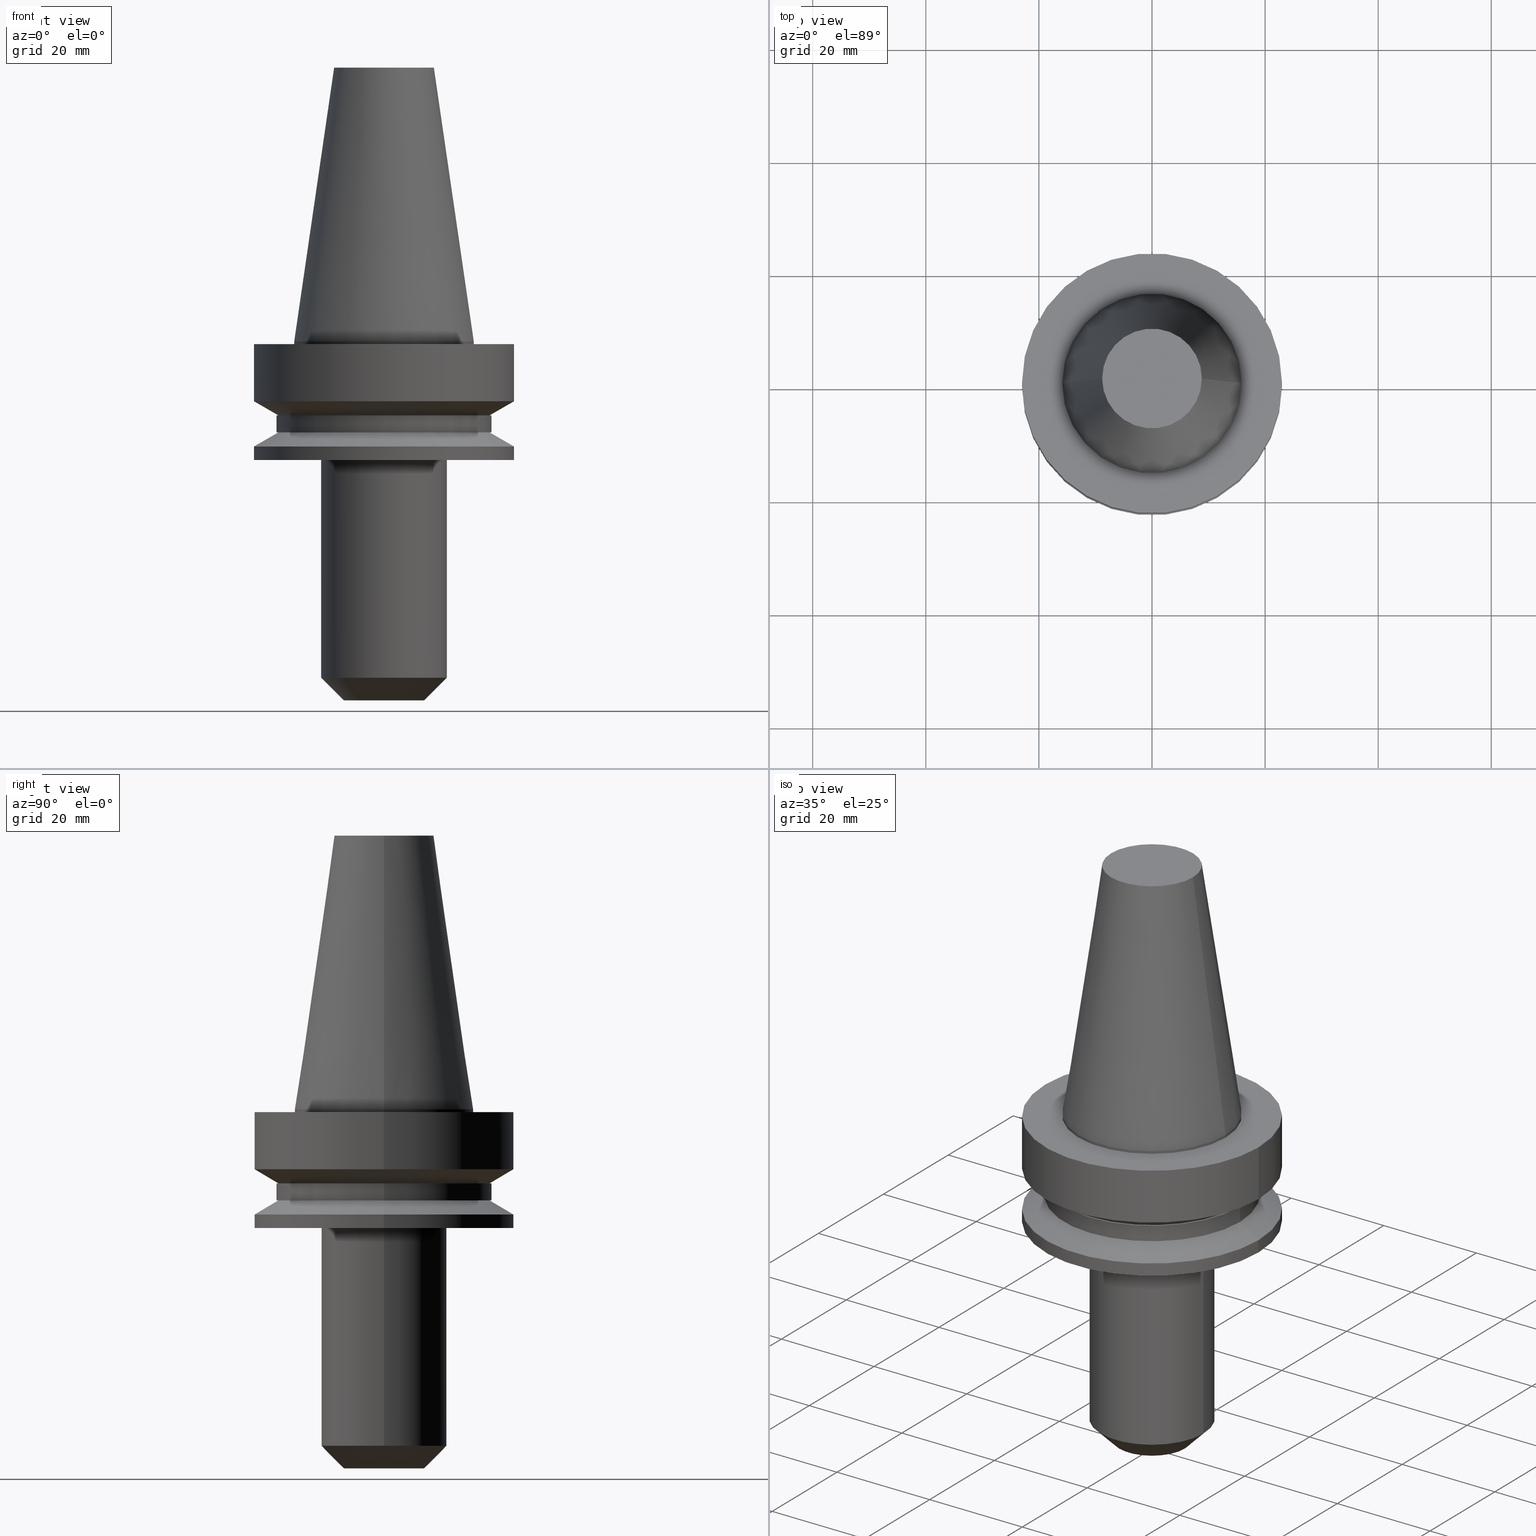
[diagram: canonical four-view strip — front | top / right | iso, engineering-drawing reading convention]
A machine part, canonical four-view strip (front | top / right | iso — engineering-drawing reading convention). The complete STEP part file that produces these views, byte-faithful:
ISO-10303-21;
HEADER;
FILE_DESCRIPTION (( 'STEP AP203' ),
    '1' );
FILE_NAME ('BBT30-EM_250-2_5.STEP',
    '2022-02-22T21:17:01',
    ( '' ),
    ( '' ),
    'SwSTEP 2.0',
    'SolidWorks 2021',
    '' );
FILE_SCHEMA (( 'CONFIG_CONTROL_DESIGN' ));
ENDSEC;

DATA;
#1 = ORIENTED_EDGE ( 'NONE', *, *, #625, .T. ) ;
#2 = EDGE_CURVE ( 'NONE', #422, #85, #767, .T. ) ;
#3 = DIRECTION ( 'NONE',  ( 1.000000000000000000, 0.000000000000000000, 0.000000000000000000 ) ) ;
#4 = APPLICATION_CONTEXT ( 'configuration controlled 3d designs of mechanical parts and assemblies' ) ;
#5 = CARTESIAN_POINT ( 'NONE',  ( 23.00000000000000711, 0.000000000000000000, -10.60014200631680126 ) ) ;
#6 = VECTOR ( 'NONE', #179, 1000.000000000000000 ) ;
#7 = EDGE_LOOP ( 'NONE', ( #473, #437, #230, #31 ) ) ;
#8 = ADVANCED_FACE ( 'NONE', ( #457 ), #591, .T. ) ;
#9 = FACE_OUTER_BOUND ( 'NONE', #148, .T. ) ;
#10 = CIRCLE ( 'NONE', #592, 3.174999999999999378 ) ;
#11 = CARTESIAN_POINT ( 'NONE',  ( -23.00000000000000000, 2.816687638038912746E-15, -18.60014200631680836 ) ) ;
#12 = EDGE_LOOP ( 'NONE', ( #123, #95, #207, #219 ) ) ;
#13 = CYLINDRICAL_SURFACE ( 'NONE', #240, 22.99999999999999645 ) ;
#14 = CARTESIAN_POINT ( 'NONE',  ( 19.00000000000000000, 0.000000000000000000, -13.10028401263362063 ) ) ;
#15 = ORIENTED_EDGE ( 'NONE', *, *, #190, .F. ) ;
#16 = DIRECTION ( 'NONE',  ( 1.000000000000000000, 0.000000000000000000, 0.000000000000000000 ) ) ;
#17 = FACE_OUTER_BOUND ( 'NONE', #593, .T. ) ;
#18 = ADVANCED_FACE ( 'NONE', ( #169, #405 ), #644, .F. ) ;
#19 = EDGE_LOOP ( 'NONE', ( #549, #726 ) ) ;
#20 = AXIS2_PLACEMENT_3D ( 'NONE', #312, #264, #614 ) ;
#21 = AXIS2_PLACEMENT_3D ( 'NONE', #82, #737, #685 ) ;
#22 = CARTESIAN_POINT ( 'NONE',  ( 0.000000000000000000, 18.66962701892216359, -13.10028401263362063 ) ) ;
#23 = ORIENTED_EDGE ( 'NONE', *, *, #348, .F. ) ;
#24 = CIRCLE ( 'NONE', #332, 23.00000000000000000 ) ;
#25 = APPROVAL ( #445, 'UNSPECIFIED' ) ;
#26 = APPROVAL_ROLE ( '' ) ;
#27 = DIRECTION ( 'NONE',  ( 0.000000000000000000, 0.000000000000000000, -1.000000000000000000 ) ) ;
#28 = ORIENTED_EDGE ( 'NONE', *, *, #583, .T. ) ;
#29 = DIRECTION ( 'NONE',  ( 1.000000000000000000, 0.000000000000000000, 0.000000000000000000 ) ) ;
#30 = DIRECTION ( 'NONE',  ( 0.8660254037844348218, 0.000000000000000000, 0.5000000000000066613 ) ) ;
#31 = ORIENTED_EDGE ( 'NONE', *, *, #339, .F. ) ;
#32 = CIRCLE ( 'NONE', #21, 18.66962701892216359 ) ;
#33 = CARTESIAN_POINT ( 'NONE',  ( 0.000000000000000000, 0.000000000000000000, -18.60014200631680836 ) ) ;
#34 = EDGE_CURVE ( 'NONE', #316, #606, #647, .T. ) ;
#35 = DIRECTION ( 'NONE',  ( -0.000000000000000000, -0.000000000000000000, 1.000000000000000000 ) ) ;
#36 = ORIENTED_EDGE ( 'NONE', *, *, #455, .T. ) ;
#37 = CIRCLE ( 'NONE', #430, 18.66962701892216359 ) ;
#38 = DIRECTION ( 'NONE',  ( 1.000000000000000000, 0.000000000000000000, 0.000000000000000000 ) ) ;
#39 = CARTESIAN_POINT ( 'NONE',  ( 0.000000000000000000, 0.000000000000000000, 0.000000000000000000 ) ) ;
#40 = EDGE_LOOP ( 'NONE', ( #165, #723 ) ) ;
#41 = DIRECTION ( 'NONE',  ( -0.000000000000000000, -0.000000000000000000, 1.000000000000000000 ) ) ;
#42 = ORIENTED_EDGE ( 'NONE', *, *, #514, .T. ) ;
#43 = EDGE_CURVE ( 'NONE', #540, #490, #61, .T. ) ;
#44 = PERSON_AND_ORGANIZATION_ROLE ( 'classification_officer' ) ;
#45 = CIRCLE ( 'NONE', #492, 3.174999999999994049 ) ;
#46 = CARTESIAN_POINT ( 'NONE',  ( 0.000000000000000000, 19.00000000000000000, -16.09999999999999787 ) ) ;
#47 = DIRECTION ( 'NONE',  ( -0.000000000000000000, -0.000000000000000000, 1.000000000000000000 ) ) ;
#48 = CC_DESIGN_PERSON_AND_ORGANIZATION_ASSIGNMENT ( #395, #44, ( #494 ) ) ;
#49 = AXIS2_PLACEMENT_3D ( 'NONE', #432, #729, #488 ) ;
#50 = DATE_AND_TIME ( #764, #365 ) ;
#51 = VECTOR ( 'NONE', #170, 1000.000000000000000 ) ;
#52 = CYLINDRICAL_SURFACE ( 'NONE', #116, 3.174999999999996714 ) ;
#53 = DIRECTION ( 'NONE',  ( -0.000000000000000000, -0.000000000000000000, 1.000000000000000000 ) ) ;
#54 = DIRECTION ( 'NONE',  ( -0.000000000000000000, -0.000000000000000000, 1.000000000000000000 ) ) ;
#55 = DIRECTION ( 'NONE',  ( -0.000000000000000000, -0.000000000000000000, 1.000000000000000000 ) ) ;
#56 = CARTESIAN_POINT ( 'NONE',  ( -3.174999999999996714, 3.888253587292842630E-16, 0.000000000000000000 ) ) ;
#57 = EDGE_CURVE ( 'NONE', #131, #682, #354, .T. ) ;
#58 = CARTESIAN_POINT ( 'NONE',  ( 0.000000000000000000, 0.000000000000000000, 0.000000000000000000 ) ) ;
#59 = CONICAL_SURFACE ( 'NONE', #257, 15.87500000000000000, 0.1448138426689024039 ) ;
#60 = DIRECTION ( 'NONE',  ( 1.000000000000000000, 0.000000000000000000, 0.000000000000000000 ) ) ;
#61 = LINE ( 'NONE', #226, #744 ) ;
#62 = EDGE_LOOP ( 'NONE', ( #669, #308 ) ) ;
#63 = DIRECTION ( 'NONE',  ( -0.000000000000000000, -0.000000000000000000, 1.000000000000000000 ) ) ;
#64 = CARTESIAN_POINT ( 'NONE',  ( 0.000000000000000000, 0.000000000000000000, -59.50000000000000000 ) ) ;
#65 = VERTEX_POINT ( 'NONE', #102 ) ;
#66 = ADVANCED_FACE ( 'NONE', ( #113 ), #96, .T. ) ;
#67 = DIRECTION ( 'NONE',  ( -1.000000000000000000, 0.000000000000000000, 0.000000000000000000 ) ) ;
#68 = DIRECTION ( 'NONE',  ( -1.000000000000000000, 0.000000000000000000, -0.000000000000000000 ) ) ;
#69 = AXIS2_PLACEMENT_3D ( 'NONE', #33, #559, #511 ) ;
#70 = ORIENTED_EDGE ( 'NONE', *, *, #572, .F. ) ;
#71 = LINE ( 'NONE', #720, #651 ) ;
#72 = VECTOR ( 'NONE', #604, 1000.000000000000000 ) ;
#73 = DIRECTION ( 'NONE',  ( 1.000000000000000000, 0.000000000000000000, 0.000000000000000000 ) ) ;
#74 = ORIENTED_EDGE ( 'NONE', *, *, #409, .T. ) ;
#75 = DIRECTION ( 'NONE',  ( 0.000000000000000000, 0.000000000000000000, -1.000000000000000000 ) ) ;
#76 = EDGE_CURVE ( 'NONE', #85, #214, #546, .T. ) ;
#77 = DIRECTION ( 'NONE',  ( -0.000000000000000000, -0.000000000000000000, 1.000000000000000000 ) ) ;
#78 = ORIENTED_EDGE ( 'NONE', *, *, #466, .F. ) ;
#79 = EDGE_CURVE ( 'NONE', #201, #210, #269, .T. ) ;
#80 = PLANE ( 'NONE',  #731 ) ;
#81 = ORIENTED_EDGE ( 'NONE', *, *, #452, .T. ) ;
#82 = CARTESIAN_POINT ( 'NONE',  ( 0.000000000000000000, 0.000000000000000000, -13.10028401263362063 ) ) ;
#83 = VECTOR ( 'NONE', #396, 1000.000000000000000 ) ;
#84 = CARTESIAN_POINT ( 'NONE',  ( 0.000000000000000000, 0.000000000000000000, 48.39999999999998437 ) ) ;
#85 = VERTEX_POINT ( 'NONE', #775 ) ;
#86 = CIRCLE ( 'NONE', #380, 11.11250000000000071 ) ;
#87 = DIRECTION ( 'NONE',  ( -1.000000000000000000, 0.000000000000000000, -0.000000000000000000 ) ) ;
#88 = ORIENTED_EDGE ( 'NONE', *, *, #128, .F. ) ;
#89 = EDGE_CURVE ( 'NONE', #499, #131, #355, .T. ) ;
#90 = PERSON_AND_ORGANIZATION ( #745, #188 ) ;
#91 = CARTESIAN_POINT ( 'NONE',  ( -23.00000000000000355, 2.816687638038912746E-15, 48.39999999999998437 ) ) ;
#92 = ORIENTED_EDGE ( 'NONE', *, *, #199, .F. ) ;
#93 = LINE ( 'NONE', #212, #174 ) ;
#94 = CYLINDRICAL_SURFACE ( 'NONE', #319, 11.11249999999999893 ) ;
#95 = ORIENTED_EDGE ( 'NONE', *, *, #420, .T. ) ;
#96 = CONICAL_SURFACE ( 'NONE', #142, 18.66962701892216359, 1.047197551196590082 ) ;
#97 = PERSON_AND_ORGANIZATION ( #745, #188 ) ;
#98 = DIRECTION ( 'NONE',  ( -0.000000000000000000, -0.000000000000000000, 1.000000000000000000 ) ) ;
#99 = EDGE_CURVE ( 'NONE', #621, #606, #618, .T. ) ;
#100 = ORIENTED_EDGE ( 'NONE', *, *, #648, .T. ) ;
#101 = CARTESIAN_POINT ( 'NONE',  ( -3.174999999999999822, 3.888253587292845588E-16, -63.50000000000000000 ) ) ;
#102 = CARTESIAN_POINT ( 'NONE',  ( 7.112499999999986500, 0.000000000000000000, -63.50000000000000000 ) ) ;
#103 = DATE_TIME_ROLE ( 'classification_date' ) ;
#104 = AXIS2_PLACEMENT_3D ( 'NONE', #368, #471, #728 ) ;
#105 = DIRECTION ( 'NONE',  ( 0.000000000000000000, 0.000000000000000000, -1.000000000000000000 ) ) ;
#106 = DIRECTION ( 'NONE',  ( 1.000000000000000000, 0.000000000000000000, 0.000000000000000000 ) ) ;
#107 = CIRCLE ( 'NONE', #167, 22.99999999999999289 ) ;
#108 = DIRECTION ( 'NONE',  ( -0.000000000000000000, -0.000000000000000000, 1.000000000000000000 ) ) ;
#109 = DIRECTION ( 'NONE',  ( -0.8660254037844348218, 1.060575238724902231E-16, 0.5000000000000066613 ) ) ;
#110 = ORIENTED_EDGE ( 'NONE', *, *, #691, .F. ) ;
#111 = EDGE_CURVE ( 'NONE', #464, #259, #10, .T. ) ;
#112 = FACE_OUTER_BOUND ( 'NONE', #19, .T. ) ;
#113 = FACE_OUTER_BOUND ( 'NONE', #444, .T. ) ;
#114 = CARTESIAN_POINT ( 'NONE',  ( 0.000000000000000000, 0.000000000000000000, -21.00000000000000355 ) ) ;
#115 = ORIENTED_EDGE ( 'NONE', *, *, #166, .T. ) ;
#116 = AXIS2_PLACEMENT_3D ( 'NONE', #282, #646, #577 ) ;
#117 = CARTESIAN_POINT ( 'NONE',  ( -23.00000000000000000, 2.816687638038912746E-15, -0.5000000000000004441 ) ) ;
#118 = EDGE_CURVE ( 'NONE', #229, #159, #177, .T. ) ;
#119 = DIRECTION ( 'NONE',  ( -0.000000000000000000, -0.000000000000000000, 1.000000000000000000 ) ) ;
#120 = ORIENTED_EDGE ( 'NONE', *, *, #557, .F. ) ;
#121 = DIRECTION ( 'NONE',  ( 1.000000000000000000, 0.000000000000000000, 0.000000000000000000 ) ) ;
#122 = CARTESIAN_POINT ( 'NONE',  ( 11.11249999999999716, 0.000000000000000000, -21.00000000000000355 ) ) ;
#123 = ORIENTED_EDGE ( 'NONE', *, *, #143, .F. ) ;
#124 = FACE_OUTER_BOUND ( 'NONE', #754, .T. ) ;
#125 = DIRECTION ( 'NONE',  ( 1.000000000000000000, 0.000000000000000000, 0.000000000000000000 ) ) ;
#126 = CONICAL_SURFACE ( 'NONE', #140, 18.66962701892216359, 1.047197551196590082 ) ;
#127 = ORIENTED_EDGE ( 'NONE', *, *, #420, .F. ) ;
#128 = EDGE_CURVE ( 'NONE', #144, #682, #539, .T. ) ;
#129 = DIRECTION ( 'NONE',  ( 1.000000000000000000, 0.000000000000000000, 0.000000000000000000 ) ) ;
#130 = DIRECTION ( 'NONE',  ( -0.000000000000000000, -0.000000000000000000, 1.000000000000000000 ) ) ;
#131 = VERTEX_POINT ( 'NONE', #187 ) ;
#132 = CC_DESIGN_PERSON_AND_ORGANIZATION_ASSIGNMENT ( #636, #459, ( #553 ) ) ;
#133 = DIRECTION ( 'NONE',  ( 1.000000000000000000, 0.000000000000000000, 0.000000000000000000 ) ) ;
#134 = DIRECTION ( 'NONE',  ( -0.000000000000000000, -0.000000000000000000, 1.000000000000000000 ) ) ;
#135 = EDGE_LOOP ( 'NONE', ( #486, #237, #552, #88 ) ) ;
#136 = DATE_TIME_ROLE ( 'creation_date' ) ;
#137 = FACE_OUTER_BOUND ( 'NONE', #62, .T. ) ;
#138 = ADVANCED_FACE ( 'NONE', ( #717, #610 ), #80, .F. ) ;
#139 = ORIENTED_EDGE ( 'NONE', *, *, #166, .F. ) ;
#140 = AXIS2_PLACEMENT_3D ( 'NONE', #543, #716, #60 ) ;
#141 = CARTESIAN_POINT ( 'NONE',  ( 0.000000000000000000, 0.000000000000000000, -13.10028401263362063 ) ) ;
#142 = AXIS2_PLACEMENT_3D ( 'NONE', #699, #586, #106 ) ;
#143 = EDGE_CURVE ( 'NONE', #390, #428, #37, .T. ) ;
#144 = VERTEX_POINT ( 'NONE', #246 ) ;
#145 = AXIS2_PLACEMENT_3D ( 'NONE', #407, #108, #218 ) ;
#146 = DIRECTION ( 'NONE',  ( -0.000000000000000000, -0.000000000000000000, 1.000000000000000000 ) ) ;
#147 = DIRECTION ( 'NONE',  ( -0.000000000000000000, -0.000000000000000000, 1.000000000000000000 ) ) ;
#148 = EDGE_LOOP ( 'NONE', ( #321, #467, #749, #633 ) ) ;
#149 = APPROVAL_ROLE ( '' ) ;
#150 = DIRECTION ( 'NONE',  ( 1.000000000000000000, 0.000000000000000000, 0.000000000000000000 ) ) ;
#151 = EDGE_LOOP ( 'NONE', ( #687, #274 ) ) ;
#152 = ADVANCED_FACE ( 'NONE', ( #373 ), #300, .T. ) ;
#153 = LOCAL_TIME ( 15, 17, 1.000000000000000000, #497 ) ;
#154 = SHAPE_DEFINITION_REPRESENTATION ( #541, #479 ) ;
#155 = CC_DESIGN_SECURITY_CLASSIFICATION ( #494, ( #553 ) ) ;
#156 = FACE_OUTER_BOUND ( 'NONE', #411, .T. ) ;
#157 = ORIENTED_EDGE ( 'NONE', *, *, #128, .T. ) ;
#158 = DIRECTION ( 'NONE',  ( 1.000000000000000000, 0.000000000000000000, 0.000000000000000000 ) ) ;
#159 = VERTEX_POINT ( 'NONE', #663 ) ;
#160 = APPROVAL_DATE_TIME ( #347, #631 ) ;
#161 = DIRECTION ( 'NONE',  ( -1.000000000000000000, 0.000000000000000000, 0.000000000000000000 ) ) ;
#162 = DIRECTION ( 'NONE',  ( 1.000000000000000000, 0.000000000000000000, 0.000000000000000000 ) ) ;
#163 = ORIENTED_EDGE ( 'NONE', *, *, #281, .F. ) ;
#164 = DIRECTION ( 'NONE',  ( -0.000000000000000000, -0.000000000000000000, 1.000000000000000000 ) ) ;
#165 = ORIENTED_EDGE ( 'NONE', *, *, #322, .T. ) ;
#166 = EDGE_CURVE ( 'NONE', #316, #65, #707, .T. ) ;
#167 = AXIS2_PLACEMENT_3D ( 'NONE', #660, #130, #472 ) ;
#168 = CARTESIAN_POINT ( 'NONE',  ( 0.000000000000000000, 0.000000000000000000, 48.39999999999998437 ) ) ;
#169 = FACE_BOUND ( 'NONE', #283, .T. ) ;
#170 = DIRECTION ( 'NONE',  ( -0.000000000000000000, -0.000000000000000000, 1.000000000000000000 ) ) ;
#171 = VERTEX_POINT ( 'NONE', #360 ) ;
#172 = ADVANCED_FACE ( 'NONE', ( #595, #554 ), #599, .F. ) ;
#173 = LINE ( 'NONE', #359, #6 ) ;
#174 = VECTOR ( 'NONE', #692, 1000.000000000000000 ) ;
#175 = CARTESIAN_POINT ( 'NONE',  ( 0.000000000000000000, 0.000000000000000000, -63.50000000000000000 ) ) ;
#176 = CIRCLE ( 'NONE', #244, 8.816600212367498912 ) ;
#177 = CIRCLE ( 'NONE', #367, 3.174999999999994049 ) ;
#178 = CIRCLE ( 'NONE', #520, 18.66962701892216359 ) ;
#179 = DIRECTION ( 'NONE',  ( -0.000000000000000000, -0.000000000000000000, 1.000000000000000000 ) ) ;
#180 = CC_DESIGN_DATE_AND_TIME_ASSIGNMENT ( #674, #136, ( #680 ) ) ;
#181 = DIRECTION ( 'NONE',  ( 1.000000000000000000, 0.000000000000000000, 0.000000000000000000 ) ) ;
#182 = VERTEX_POINT ( 'NONE', #668 ) ;
#183 = CARTESIAN_POINT ( 'NONE',  ( 0.000000000000000000, 0.000000000000000000, 48.39999999999998437 ) ) ;
#184 = DIRECTION ( 'NONE',  ( 1.000000000000000000, 0.000000000000000000, 0.000000000000000000 ) ) ;
#185 = VERTEX_POINT ( 'NONE', #11 ) ;
#186 = CARTESIAN_POINT ( 'NONE',  ( -15.87500000000000000, 0.000000000000000000, 0.000000000000000000 ) ) ;
#187 = CARTESIAN_POINT ( 'NONE',  ( -15.87500000000000000, 1.944126793646423238E-15, -0.5000000000000004441 ) ) ;
#188 = ORGANIZATION ( 'UNSPECIFIED', 'UNSPECIFIED', '' ) ;
#189 = ORIENTED_EDGE ( 'NONE', *, *, #76, .T. ) ;
#190 = EDGE_CURVE ( 'NONE', #182, #412, #107, .T. ) ;
#191 = DIRECTION ( 'NONE',  ( -0.000000000000000000, -0.000000000000000000, 1.000000000000000000 ) ) ;
#192 = CARTESIAN_POINT ( 'NONE',  ( 22.99999999999999645, 0.000000000000000000, 48.39999999999998437 ) ) ;
#193 = VERTEX_POINT ( 'NONE', #14 ) ;
#194 = EDGE_CURVE ( 'NONE', #65, #316, #441, .T. ) ;
#195 = PERSON_AND_ORGANIZATION ( #745, #188 ) ;
#196 = CARTESIAN_POINT ( 'NONE',  ( -7.112499999999986500, 1.115959395723024748E-15, -63.50000000000000000 ) ) ;
#197 = ORIENTED_EDGE ( 'NONE', *, *, #2, .F. ) ;
#198 =( LENGTH_UNIT ( ) NAMED_UNIT ( * ) SI_UNIT ( .MILLI., .METRE. ) );
#199 = EDGE_CURVE ( 'NONE', #606, #201, #241, .T. ) ;
#200 = LINE ( 'NONE', #213, #522 ) ;
#201 = VERTEX_POINT ( 'NONE', #369 ) ;
#202 = CIRCLE ( 'NONE', #402, 15.87500000000000000 ) ;
#203 = DIRECTION ( 'NONE',  ( -0.000000000000000000, -0.000000000000000000, 1.000000000000000000 ) ) ;
#204 = CC_DESIGN_PERSON_AND_ORGANIZATION_ASSIGNMENT ( #97, #468, ( #553 ) ) ;
#205 = DIRECTION ( 'NONE',  ( 1.000000000000000000, 0.000000000000000000, 0.000000000000000000 ) ) ;
#206 = VECTOR ( 'NONE', #672, 1000.000000000000114 ) ;
#207 = ORIENTED_EDGE ( 'NONE', *, *, #372, .T. ) ;
#208 =( NAMED_UNIT ( * ) SI_UNIT ( $, .STERADIAN. ) SOLID_ANGLE_UNIT ( ) );
#209 = DIRECTION ( 'NONE',  ( 1.000000000000000000, 0.000000000000000000, 0.000000000000000000 ) ) ;
#210 = VERTEX_POINT ( 'NONE', #122 ) ;
#211 = ADVANCED_FACE ( 'NONE', ( #17 ), #485, .T. ) ;
#212 = CARTESIAN_POINT ( 'NONE',  ( 23.00000000000000355, 0.000000000000000000, 48.39999999999998437 ) ) ;
#213 = CARTESIAN_POINT ( 'NONE',  ( -19.00000000000000000, 2.326828918379970970E-15, 48.39999999999998437 ) ) ;
#214 = VERTEX_POINT ( 'NONE', #5 ) ;
#215 = CC_DESIGN_PERSON_AND_ORGANIZATION_ASSIGNMENT ( #90, #325, ( #734 ) ) ;
#216 = AXIS2_PLACEMENT_3D ( 'NONE', #491, #309, #477 ) ;
#217 = CALENDAR_DATE ( 2022, 22, 2 ) ;
#218 = DIRECTION ( 'NONE',  ( 1.000000000000000000, 0.000000000000000000, 0.000000000000000000 ) ) ;
#219 = ORIENTED_EDGE ( 'NONE', *, *, #537, .F. ) ;
#220 = AXIS2_PLACEMENT_3D ( 'NONE', #771, #234, #523 ) ;
#221 = PLANE ( 'NONE',  #755 ) ;
#222 = CARTESIAN_POINT ( 'NONE',  ( 0.000000000000000000, 0.000000000000000000, -63.50000000000000000 ) ) ;
#223 = ORIENTED_EDGE ( 'NONE', *, *, #701, .T. ) ;
#224 = CYLINDRICAL_SURFACE ( 'NONE', #344, 19.00000000000000000 ) ;
#225 = ADVANCED_FACE ( 'NONE', ( #253 ), #725, .F. ) ;
#226 = CARTESIAN_POINT ( 'NONE',  ( 15.87500000000000000, 1.944126793646423238E-15, 0.000000000000000000 ) ) ;
#227 = AXIS2_PLACEMENT_3D ( 'NONE', #659, #75, #67 ) ;
#228 = CARTESIAN_POINT ( 'NONE',  ( -23.00000000000000000, 0.000000000000000000, -18.60014200631680836 ) ) ;
#229 = VERTEX_POINT ( 'NONE', #548 ) ;
#230 = ORIENTED_EDGE ( 'NONE', *, *, #710, .F. ) ;
#231 = CONICAL_SURFACE ( 'NONE', #683, 7.112499999999986500, 0.7853981633974496113 ) ;
#232 = FACE_OUTER_BOUND ( 'NONE', #7, .T. ) ;
#233 = DESIGN_CONTEXT ( 'detailed design', #482, 'design' ) ;
#234 = DIRECTION ( 'NONE',  ( -0.000000000000000000, -0.000000000000000000, 1.000000000000000000 ) ) ;
#235 = EDGE_CURVE ( 'NONE', #606, #621, #86, .T. ) ;
#236 = CYLINDRICAL_SURFACE ( 'NONE', #601, 15.87500000000000000 ) ;
#237 = ORIENTED_EDGE ( 'NONE', *, *, #43, .T. ) ;
#238 = ORIENTED_EDGE ( 'NONE', *, *, #710, .T. ) ;
#239 = PLANE ( 'NONE',  #567 ) ;
#240 = AXIS2_PLACEMENT_3D ( 'NONE', #183, #671, #16 ) ;
#241 = LINE ( 'NONE', #310, #418 ) ;
#242 = ORIENTED_EDGE ( 'NONE', *, *, #118, .F. ) ;
#243 = VECTOR ( 'NONE', #98, 1000.000000000000000 ) ;
#244 = AXIS2_PLACEMENT_3D ( 'NONE', #585, #762, #649 ) ;
#245 = CARTESIAN_POINT ( 'NONE',  ( 11.11250000000000071, 0.000000000000000000, -59.50000000000000000 ) ) ;
#246 = CARTESIAN_POINT ( 'NONE',  ( -8.816600212367498912, 0.000000000000000000, 48.39999999999999858 ) ) ;
#247 = EDGE_LOOP ( 'NONE', ( #401, #139 ) ) ;
#248 = FACE_OUTER_BOUND ( 'NONE', #736, .T. ) ;
#249 = EDGE_CURVE ( 'NONE', #182, #408, #364, .T. ) ;
#250 = DIRECTION ( 'NONE',  ( 1.000000000000000000, 0.000000000000000000, 0.000000000000000000 ) ) ;
#251 = ORIENTED_EDGE ( 'NONE', *, *, #772, .F. ) ;
#252 = CARTESIAN_POINT ( 'NONE',  ( 0.000000000000000000, 0.000000000000000000, -18.60014200631680836 ) ) ;
#253 = FACE_OUTER_BOUND ( 'NONE', #386, .T. ) ;
#254 = CC_DESIGN_APPROVAL ( #25, ( #680 ) ) ;
#255 = ORIENTED_EDGE ( 'NONE', *, *, #387, .F. ) ;
#256 = APPLICATION_PROTOCOL_DEFINITION ( 'international standard', 'config_control_design', 1994, #482 ) ;
#257 = AXIS2_PLACEMENT_3D ( 'NONE', #39, #27, #272 ) ;
#258 = LINE ( 'NONE', #738, #769 ) ;
#259 = VERTEX_POINT ( 'NONE', #307 ) ;
#260 = ADVANCED_FACE ( 'NONE', ( #504 ), #231, .T. ) ;
#261 = CARTESIAN_POINT ( 'NONE',  ( 0.000000000000000000, 0.000000000000000000, -0.5000000000000004441 ) ) ;
#262 = CARTESIAN_POINT ( 'NONE',  ( 0.000000000000000000, 0.000000000000000000, -0.5000000000000004441 ) ) ;
#263 = ORIENTED_EDGE ( 'NONE', *, *, #34, .T. ) ;
#264 = DIRECTION ( 'NONE',  ( -0.000000000000000000, -0.000000000000000000, 1.000000000000000000 ) ) ;
#265 = CARTESIAN_POINT ( 'NONE',  ( -22.99999999999999289, 2.816687638038911957E-15, -21.00000000000000355 ) ) ;
#266 = ORIENTED_EDGE ( 'NONE', *, *, #572, .T. ) ;
#267 = AXIS2_PLACEMENT_3D ( 'NONE', #306, #609, #547 ) ;
#268 = DIRECTION ( 'NONE',  ( -0.000000000000000000, -0.000000000000000000, 1.000000000000000000 ) ) ;
#269 = CIRCLE ( 'NONE', #343, 11.11249999999999716 ) ;
#270 = ORIENTED_EDGE ( 'NONE', *, *, #199, .T. ) ;
#271 = CARTESIAN_POINT ( 'NONE',  ( -19.00000000000000000, 2.326828918379970970E-15, -13.10028401263362063 ) ) ;
#272 = DIRECTION ( 'NONE',  ( -1.000000000000000000, 0.000000000000000000, 0.000000000000000000 ) ) ;
#273 = CC_DESIGN_DATE_AND_TIME_ASSIGNMENT ( #50, #103, ( #494 ) ) ;
#274 = ORIENTED_EDGE ( 'NONE', *, *, #79, .T. ) ;
#275 = DIRECTION ( 'NONE',  ( 1.000000000000000000, 0.000000000000000000, 0.000000000000000000 ) ) ;
#276 = EDGE_LOOP ( 'NONE', ( #730, #42, #507, #23 ) ) ;
#277 = AXIS2_PLACEMENT_3D ( 'NONE', #414, #654, #435 ) ;
#278 = DIRECTION ( 'NONE',  ( 1.000000000000000000, 0.000000000000000000, 0.000000000000000000 ) ) ;
#279 = DIRECTION ( 'NONE',  ( -0.000000000000000000, -0.000000000000000000, 1.000000000000000000 ) ) ;
#280 = CIRCLE ( 'NONE', #145, 3.174999999999999378 ) ;
#281 = EDGE_CURVE ( 'NONE', #85, #573, #320, .T. ) ;
#282 = CARTESIAN_POINT ( 'NONE',  ( 0.000000000000000000, 0.000000000000000000, 0.000000000000000000 ) ) ;
#283 = EDGE_LOOP ( 'NONE', ( #394, #383 ) ) ;
#284 = FACE_BOUND ( 'NONE', #526, .T. ) ;
#285 = ORIENTED_EDGE ( 'NONE', *, *, #249, .F. ) ;
#286 = COORDINATED_UNIVERSAL_TIME_OFFSET ( 6, 0, .BEHIND. ) ;
#287 = CIRCLE ( 'NONE', #328, 8.816600212367498912 ) ;
#288 = DIRECTION ( 'NONE',  ( -0.000000000000000000, -0.000000000000000000, 1.000000000000000000 ) ) ;
#289 = CC_DESIGN_APPROVAL ( #631, ( #494 ) ) ;
#290 = ADVANCED_FACE ( 'NONE', ( #392 ), #59, .T. ) ;
#291 = DIRECTION ( 'NONE',  ( 1.000000000000000000, 0.000000000000000000, 0.000000000000000000 ) ) ;
#292 = CARTESIAN_POINT ( 'NONE',  ( 19.00000000000000000, 0.000000000000000000, -16.10000000000000142 ) ) ;
#293 = DIRECTION ( 'NONE',  ( -0.000000000000000000, -0.000000000000000000, 1.000000000000000000 ) ) ;
#294 = ADVANCED_FACE ( 'NONE', ( #137 ), #385, .F. ) ;
#295 = ORIENTED_EDGE ( 'NONE', *, *, #315, .F. ) ;
#296 = DIRECTION ( 'NONE',  ( -0.000000000000000000, -0.000000000000000000, 1.000000000000000000 ) ) ;
#297 = DIRECTION ( 'NONE',  ( -0.000000000000000000, -0.000000000000000000, 1.000000000000000000 ) ) ;
#298 = VERTEX_POINT ( 'NONE', #326 ) ;
#299 = DIRECTION ( 'NONE',  ( 1.000000000000000000, 0.000000000000000000, 0.000000000000000000 ) ) ;
#300 = CYLINDRICAL_SURFACE ( 'NONE', #496, 15.87500000000000000 ) ;
#301 = CC_DESIGN_APPROVAL ( #353, ( #553 ) ) ;
#302 = ORIENTED_EDGE ( 'NONE', *, *, #648, .F. ) ;
#303 = AXIS2_PLACEMENT_3D ( 'NONE', #58, #398, #291 ) ;
#304 = AXIS2_PLACEMENT_3D ( 'NONE', #175, #714, #250 ) ;
#305 = ADVANCED_FACE ( 'NONE', ( #442 ), #94, .T. ) ;
#306 = CARTESIAN_POINT ( 'NONE',  ( 0.000000000000000000, 0.000000000000000000, -63.50000000000000000 ) ) ;
#307 = CARTESIAN_POINT ( 'NONE',  ( 3.174999999999999378, 0.000000000000000000, -63.50000000000000000 ) ) ;
#308 = ORIENTED_EDGE ( 'NONE', *, *, #756, .T. ) ;
#309 = DIRECTION ( 'NONE',  ( -0.000000000000000000, -0.000000000000000000, 1.000000000000000000 ) ) ;
#310 = CARTESIAN_POINT ( 'NONE',  ( -11.11249999999999893, 1.360888755552496227E-15, 0.000000000000000000 ) ) ;
#311 = ORIENTED_EDGE ( 'NONE', *, *, #76, .F. ) ;
#312 = CARTESIAN_POINT ( 'NONE',  ( 0.000000000000000000, 0.000000000000000000, -13.10028401263362063 ) ) ;
#313 = DIRECTION ( 'NONE',  ( 0.000000000000000000, 0.000000000000000000, -1.000000000000000000 ) ) ;
#314 = CIRCLE ( 'NONE', #474, 23.00000000000000711 ) ;
#315 = EDGE_CURVE ( 'NONE', #171, #743, #200, .T. ) ;
#316 = VERTEX_POINT ( 'NONE', #196 ) ;
#317 = CIRCLE ( 'NONE', #684, 15.87500000000000000 ) ;
#318 = DIRECTION ( 'NONE',  ( 0.000000000000000000, 0.000000000000000000, 1.000000000000000000 ) ) ;
#319 = AXIS2_PLACEMENT_3D ( 'NONE', #632, #693, #205 ) ;
#320 = LINE ( 'NONE', #91, #570 ) ;
#321 = ORIENTED_EDGE ( 'NONE', *, *, #57, .F. ) ;
#322 = EDGE_CURVE ( 'NONE', #524, #573, #24, .T. ) ;
#323 = LINE ( 'NONE', #571, #381 ) ;
#324 = ORIENTED_EDGE ( 'NONE', *, *, #625, .F. ) ;
#325 = PERSON_AND_ORGANIZATION_ROLE ( 'design_owner' ) ;
#326 = CARTESIAN_POINT ( 'NONE',  ( 18.66962701892216359, 0.000000000000000000, -13.10028401263362063 ) ) ;
#327 = ORIENTED_EDGE ( 'NONE', *, *, #79, .F. ) ;
#328 = AXIS2_PLACEMENT_3D ( 'NONE', #746, #203, #733 ) ;
#329 = APPLICATION_PROTOCOL_DEFINITION ( 'international standard', 'config_control_design', 1994, #4 ) ;
#330 = ADVANCED_FACE ( 'NONE', ( #676 ), #501, .T. ) ;
#331 = DIRECTION ( 'NONE',  ( 1.000000000000000000, 0.000000000000000000, 0.000000000000000000 ) ) ;
#332 = AXIS2_PLACEMENT_3D ( 'NONE', #262, #686, #747 ) ;
#333 = EDGE_LOOP ( 'NONE', ( #529, #450, #157, #223 ) ) ;
#334 = CARTESIAN_POINT ( 'NONE',  ( 0.000000000000000000, 0.000000000000000000, -18.60014200631680836 ) ) ;
#335 = EDGE_LOOP ( 'NONE', ( #163, #189, #673, #378 ) ) ;
#336 = APPROVAL_ROLE ( '' ) ;
#337 = DIRECTION ( 'NONE',  ( -0.000000000000000000, -0.000000000000000000, 1.000000000000000000 ) ) ;
#338 = DIRECTION ( 'NONE',  ( 0.1443082234293875943, 1.767266039134405996E-17, -0.9895327870518761948 ) ) ;
#339 = EDGE_CURVE ( 'NONE', #638, #193, #446, .T. ) ;
#340 = CONICAL_SURFACE ( 'NONE', #227, 15.87500000000000000, 0.1448138426689024039 ) ;
#341 = FACE_OUTER_BOUND ( 'NONE', #624, .T. ) ;
#342 = CARTESIAN_POINT ( 'NONE',  ( 0.000000000000000000, 0.000000000000000000, -21.00000000000000355 ) ) ;
#343 = AXIS2_PLACEMENT_3D ( 'NONE', #342, #279, #461 ) ;
#344 = AXIS2_PLACEMENT_3D ( 'NONE', #168, #637, #770 ) ;
#345 = CARTESIAN_POINT ( 'NONE',  ( -18.66962701892216359, 2.551528767519355189E-15, -13.10028401263362063 ) ) ;
#346 = CARTESIAN_POINT ( 'NONE',  ( -15.87500000000000000, 1.944126793646423238E-15, 48.39999999999998437 ) ) ;
#347 = DATE_AND_TIME ( #217, #476 ) ;
#348 = EDGE_CURVE ( 'NONE', #259, #229, #258, .T. ) ;
#349 = CARTESIAN_POINT ( 'NONE',  ( 15.87500000000000000, 0.000000000000000000, -0.5000000000000004441 ) ) ;
#350 = CARTESIAN_POINT ( 'NONE',  ( 0.000000000000000000, 0.000000000000000000, -10.60014200631680126 ) ) ;
#351 = CIRCLE ( 'NONE', #277, 19.00000000000000000 ) ;
#352 = CARTESIAN_POINT ( 'NONE',  ( 0.000000000000000000, 0.000000000000000000, -10.60014200631680126 ) ) ;
#353 = APPROVAL ( #375, 'UNSPECIFIED' ) ;
#354 = LINE ( 'NONE', #346, #508 ) ;
#355 = CIRCLE ( 'NONE', #642, 15.87500000000000000 ) ;
#356 = CARTESIAN_POINT ( 'NONE',  ( 0.000000000000000000, 22.99999999999999289, -20.99999999999999645 ) ) ;
#357 = CARTESIAN_POINT ( 'NONE',  ( 0.000000000000000000, 0.000000000000000000, -16.09999999999999076 ) ) ;
#358 = EDGE_LOOP ( 'NONE', ( #238, #597 ) ) ;
#359 = CARTESIAN_POINT ( 'NONE',  ( 15.87500000000000000, 0.000000000000000000, 48.39999999999998437 ) ) ;
#360 = CARTESIAN_POINT ( 'NONE',  ( -19.00000000000000000, 2.326828918379970970E-15, -16.10000000000000142 ) ) ;
#361 = ORIENTED_EDGE ( 'NONE', *, *, #537, .T. ) ;
#362 = ADVANCED_FACE ( 'NONE', ( #156 ), #627, .T. ) ;
#363 = CIRCLE ( 'NONE', #505, 23.00000000000000000 ) ;
#364 = LINE ( 'NONE', #192, #72 ) ;
#365 = LOCAL_TIME ( 15, 17, 1.000000000000000000, #286 ) ;
#366 = ORIENTED_EDGE ( 'NONE', *, *, #194, .T. ) ;
#367 = AXIS2_PLACEMENT_3D ( 'NONE', #582, #53, #181 ) ;
#368 = CARTESIAN_POINT ( 'NONE',  ( 0.000000000000000000, 0.000000000000000000, -0.5000000000000004441 ) ) ;
#369 = CARTESIAN_POINT ( 'NONE',  ( -11.11249999999999716, 1.360888755552496227E-15, -21.00000000000000355 ) ) ;
#370 = EDGE_LOOP ( 'NONE', ( #295, #433, #495, #556 ) ) ;
#371 = PERSON_AND_ORGANIZATION ( #745, #188 ) ;
#372 = EDGE_CURVE ( 'NONE', #408, #185, #558, .T. ) ;
#373 = FACE_OUTER_BOUND ( 'NONE', #629, .T. ) ;
#374 = ORIENTED_EDGE ( 'NONE', *, *, #249, .T. ) ;
#375 = APPROVAL_STATUS ( 'not_yet_approved' ) ;
#376 = DIRECTION ( 'NONE',  ( 1.000000000000000000, 0.000000000000000000, 0.000000000000000000 ) ) ;
#377 = APPROVAL_PERSON_ORGANIZATION ( #565, #25, #149 ) ;
#378 = ORIENTED_EDGE ( 'NONE', *, *, #732, .F. ) ;
#379 = COORDINATED_UNIVERSAL_TIME_OFFSET ( 6, 0, .BEHIND. ) ;
#380 = AXIS2_PLACEMENT_3D ( 'NONE', #64, #297, #423 ) ;
#381 = VECTOR ( 'NONE', #30, 1000.000000000000000 ) ;
#382 = PLANE ( 'NONE',  #581 ) ;
#383 = ORIENTED_EDGE ( 'NONE', *, *, #622, .F. ) ;
#384 = MECHANICAL_CONTEXT ( 'NONE', #4, 'mechanical' ) ;
#385 = PLANE ( 'NONE',  #670 ) ;
#386 = EDGE_LOOP ( 'NONE', ( #480, #440, #458, #664 ) ) ;
#387 = EDGE_CURVE ( 'NONE', #298, #422, #178, .T. ) ;
#388 = PERSON_AND_ORGANIZATION_ROLE ( 'creator' ) ;
#389 = CARTESIAN_POINT ( 'NONE',  ( 0.000000000000000000, 22.99999999999999289, -20.99999999999999645 ) ) ;
#390 = VERTEX_POINT ( 'NONE', #750 ) ;
#391 = AXIS2_PLACEMENT_3D ( 'NONE', #431, #296, #3 ) ;
#392 = FACE_OUTER_BOUND ( 'NONE', #135, .T. ) ;
#393 = AXIS2_PLACEMENT_3D ( 'NONE', #350, #293, #763 ) ;
#394 = ORIENTED_EDGE ( 'NONE', *, *, #89, .F. ) ;
#395 = PERSON_AND_ORGANIZATION ( #745, #188 ) ;
#396 = DIRECTION ( 'NONE',  ( 0.8660254037844344888, 1.060575238724901861E-16, -0.5000000000000072164 ) ) ;
#397 = ADVANCED_FACE ( 'NONE', ( #449, #689 ), #382, .F. ) ;
#398 = DIRECTION ( 'NONE',  ( -0.000000000000000000, -0.000000000000000000, 1.000000000000000000 ) ) ;
#399 = CARTESIAN_POINT ( 'NONE',  ( 23.00000000000000000, 2.816687638038912352E-15, -18.60014200631680836 ) ) ;
#400 = DIRECTION ( 'NONE',  ( -1.000000000000000000, 0.000000000000000000, -0.000000000000000000 ) ) ;
#401 = ORIENTED_EDGE ( 'NONE', *, *, #194, .F. ) ;
#402 = AXIS2_PLACEMENT_3D ( 'NONE', #774, #713, #299 ) ;
#403 = COORDINATED_UNIVERSAL_TIME_OFFSET ( 6, 0, .BEHIND. ) ;
#404 = CARTESIAN_POINT ( 'NONE',  ( 23.00000000000000000, 0.000000000000000000, -0.5000000000000004441 ) ) ;
#405 = FACE_OUTER_BOUND ( 'NONE', #40, .T. ) ;
#406 = AXIS2_PLACEMENT_3D ( 'NONE', #722, #119, #184 ) ;
#407 = CARTESIAN_POINT ( 'NONE',  ( 0.000000000000000000, 0.000000000000000000, -63.50000000000000000 ) ) ;
#408 = VERTEX_POINT ( 'NONE', #620 ) ;
#409 = EDGE_CURVE ( 'NONE', #298, #214, #323, .T. ) ;
#410 = DIRECTION ( 'NONE',  ( -0.000000000000000000, -0.000000000000000000, 1.000000000000000000 ) ) ;
#411 = EDGE_LOOP ( 'NONE', ( #266, #545, #652, #251 ) ) ;
#412 = VERTEX_POINT ( 'NONE', #265 ) ;
#413 = APPROVAL_PERSON_ORGANIZATION ( #195, #353, #26 ) ;
#414 = CARTESIAN_POINT ( 'NONE',  ( 0.000000000000000000, 0.000000000000000000, -13.10028401263362063 ) ) ;
#415 = CIRCLE ( 'NONE', #519, 19.00000000000000000 ) ;
#416 = DIRECTION ( 'NONE',  ( 1.000000000000000000, 0.000000000000000000, 0.000000000000000000 ) ) ;
#417 = EDGE_LOOP ( 'NONE', ( #15, #110 ) ) ;
#418 = VECTOR ( 'NONE', #551, 1000.000000000000000 ) ;
#419 = DIRECTION ( 'NONE',  ( 0.000000000000000000, -0.000000000000000000, 1.000000000000000000 ) ) ;
#420 = EDGE_CURVE ( 'NONE', #390, #408, #741, .T. ) ;
#421 = DIRECTION ( 'NONE',  ( -0.000000000000000000, -0.000000000000000000, 1.000000000000000000 ) ) ;
#422 = VERTEX_POINT ( 'NONE', #345 ) ;
#423 = DIRECTION ( 'NONE',  ( 1.000000000000000000, 0.000000000000000000, 0.000000000000000000 ) ) ;
#424 = EDGE_LOOP ( 'NONE', ( #197, #568, #74, #311 ) ) ;
#425 = DIRECTION ( 'NONE',  ( -0.000000000000000000, -0.000000000000000000, 1.000000000000000000 ) ) ;
#426 = CIRCLE ( 'NONE', #216, 18.66962701892216359 ) ;
#427 = CARTESIAN_POINT ( 'NONE',  ( 0.000000000000000000, 0.000000000000000000, 48.39999999999998437 ) ) ;
#428 = VERTEX_POINT ( 'NONE', #515 ) ;
#429 = EDGE_CURVE ( 'NONE', #144, #540, #176, .T. ) ;
#430 = AXIS2_PLACEMENT_3D ( 'NONE', #357, #134, #416 ) ;
#431 = CARTESIAN_POINT ( 'NONE',  ( 0.000000000000000000, 0.000000000000000000, -16.10000000000000142 ) ) ;
#432 = CARTESIAN_POINT ( 'NONE',  ( 0.000000000000000000, 7.112499999999986500, -63.50000000000000000 ) ) ;
#433 = ORIENTED_EDGE ( 'NONE', *, *, #608, .T. ) ;
#434 = ADVANCED_FACE ( 'NONE', ( #759 ), #224, .T. ) ;
#435 = DIRECTION ( 'NONE',  ( 1.000000000000000000, 0.000000000000000000, 0.000000000000000000 ) ) ;
#436 = DIRECTION ( 'NONE',  ( 1.000000000000000000, 0.000000000000000000, 0.000000000000000000 ) ) ;
#437 = ORIENTED_EDGE ( 'NONE', *, *, #315, .T. ) ;
#438 = DIRECTION ( 'NONE',  ( -0.000000000000000000, -0.000000000000000000, 1.000000000000000000 ) ) ;
#439 = CIRCLE ( 'NONE', #740, 11.11249999999999716 ) ;
#440 = ORIENTED_EDGE ( 'NONE', *, *, #455, .F. ) ;
#441 = CIRCLE ( 'NONE', #304, 7.112499999999986500 ) ;
#442 = FACE_OUTER_BOUND ( 'NONE', #677, .T. ) ;
#443 = ADVANCED_FACE ( 'NONE', ( #341 ), #481, .T. ) ;
#444 = EDGE_LOOP ( 'NONE', ( #561, #617, #70, #470 ) ) ;
#445 = APPROVAL_STATUS ( 'not_yet_approved' ) ;
#446 = LINE ( 'NONE', #615, #243 ) ;
#447 = EDGE_LOOP ( 'NONE', ( #255, #661 ) ) ;
#448 = CALENDAR_DATE ( 2022, 22, 2 ) ;
#449 = FACE_BOUND ( 'NONE', #151, .T. ) ;
#450 = ORIENTED_EDGE ( 'NONE', *, *, #429, .F. ) ;
#451 = LOCAL_TIME ( 15, 17, 1.000000000000000000, #379 ) ;
#452 = EDGE_CURVE ( 'NONE', #412, #185, #525, .T. ) ;
#453 = CARTESIAN_POINT ( 'NONE',  ( 8.816600212367498912, 1.511924458295098338E-15, 48.39999999999999858 ) ) ;
#454 = EDGE_LOOP ( 'NONE', ( #36, #751 ) ) ;
#455 = EDGE_CURVE ( 'NONE', #259, #464, #280, .T. ) ;
#456 = DIRECTION ( 'NONE',  ( 1.000000000000000000, 0.000000000000000000, 0.000000000000000000 ) ) ;
#457 = FACE_OUTER_BOUND ( 'NONE', #695, .T. ) ;
#458 = ORIENTED_EDGE ( 'NONE', *, *, #348, .T. ) ;
#459 = PERSON_AND_ORGANIZATION_ROLE ( 'creator' ) ;
#460 = CYLINDRICAL_SURFACE ( 'NONE', #653, 19.00000000000000000 ) ;
#461 = DIRECTION ( 'NONE',  ( 1.000000000000000000, 0.000000000000000000, 0.000000000000000000 ) ) ;
#462 = FACE_OUTER_BOUND ( 'NONE', #276, .T. ) ;
#463 = CLOSED_SHELL ( 'NONE', ( #484, #260, #305, #152, #362, #66, #475, #721, #655, #290, #697, #294, #397, #211, #443, #489, #434, #138, #590, #330, #18, #596, #8, #639, #172, #225, #665 ) ) ;
#464 = VERTEX_POINT ( 'NONE', #101 ) ;
#465 = AXIS2_PLACEMENT_3D ( 'NONE', #544, #77, #73 ) ;
#466 = EDGE_CURVE ( 'NONE', #490, #682, #317, .T. ) ;
#467 = ORIENTED_EDGE ( 'NONE', *, *, #622, .T. ) ;
#468 = PERSON_AND_ORGANIZATION_ROLE ( 'design_supplier' ) ;
#469 = DIRECTION ( 'NONE',  ( 1.000000000000000000, 0.000000000000000000, 0.000000000000000000 ) ) ;
#470 = ORIENTED_EDGE ( 'NONE', *, *, #409, .F. ) ;
#471 = DIRECTION ( 'NONE',  ( -0.000000000000000000, -0.000000000000000000, 1.000000000000000000 ) ) ;
#472 = DIRECTION ( 'NONE',  ( 1.000000000000000000, 0.000000000000000000, 0.000000000000000000 ) ) ;
#473 = ORIENTED_EDGE ( 'NONE', *, *, #528, .T. ) ;
#474 = AXIS2_PLACEMENT_3D ( 'NONE', #352, #41, #275 ) ;
#475 = ADVANCED_FACE ( 'NONE', ( #232 ), #460, .T. ) ;
#476 = LOCAL_TIME ( 15, 17, 1.000000000000000000, #531 ) ;
#477 = DIRECTION ( 'NONE',  ( 1.000000000000000000, 0.000000000000000000, 0.000000000000000000 ) ) ;
#478 = DIRECTION ( 'NONE',  ( -0.000000000000000000, -0.000000000000000000, 1.000000000000000000 ) ) ;
#479 = ADVANCED_BREP_SHAPE_REPRESENTATION ( 'BBT30-EM_250-2_5', ( #506, #628 ), #666 ) ;
#480 = ORIENTED_EDGE ( 'NONE', *, *, #514, .F. ) ;
#481 = CONICAL_SURFACE ( 'NONE', #619, 23.00000000000000000, 1.047197551196589416 ) ;
#482 = APPLICATION_CONTEXT ( 'configuration controlled 3d designs of mechanical parts and assemblies' ) ;
#483 = DIRECTION ( 'NONE',  ( -0.000000000000000000, -0.000000000000000000, 1.000000000000000000 ) ) ;
#484 = ADVANCED_FACE ( 'NONE', ( #462 ), #52, .F. ) ;
#485 = CYLINDRICAL_SURFACE ( 'NONE', #406, 22.99999999999999645 ) ;
#486 = ORIENTED_EDGE ( 'NONE', *, *, #756, .F. ) ;
#487 = DIRECTION ( 'NONE',  ( 1.000000000000000000, 0.000000000000000000, 0.000000000000000000 ) ) ;
#488 = DIRECTION ( 'NONE',  ( 1.000000000000000000, 0.000000000000000000, 0.000000000000000000 ) ) ;
#489 = ADVANCED_FACE ( 'NONE', ( #112, #284 ), #221, .F. ) ;
#490 = VERTEX_POINT ( 'NONE', #703 ) ;
#491 = CARTESIAN_POINT ( 'NONE',  ( 0.000000000000000000, 0.000000000000000000, -16.09999999999999076 ) ) ;
#492 = AXIS2_PLACEMENT_3D ( 'NONE', #114, #288, #469 ) ;
#493 = CARTESIAN_POINT ( 'NONE',  ( 0.000000000000000000, 0.000000000000000000, 0.000000000000000000 ) ) ;
#494 = SECURITY_CLASSIFICATION ( '', '', #696 ) ;
#495 = ORIENTED_EDGE ( 'NONE', *, *, #339, .T. ) ;
#496 = AXIS2_PLACEMENT_3D ( 'NONE', #427, #421, #657 ) ;
#497 = COORDINATED_UNIVERSAL_TIME_OFFSET ( 6, 0, .BEHIND. ) ;
#498 = DIRECTION ( 'NONE',  ( 0.000000000000000000, -0.000000000000000000, 1.000000000000000000 ) ) ;
#499 = VERTEX_POINT ( 'NONE', #349 ) ;
#500 = CARTESIAN_POINT ( 'NONE',  ( 0.000000000000000000, 0.000000000000000000, 0.000000000000000000 ) ) ;
#501 = CYLINDRICAL_SURFACE ( 'NONE', #630, 23.00000000000000355 ) ;
#502 = ORIENTED_EDGE ( 'NONE', *, *, #143, .T. ) ;
#503 =( NAMED_UNIT ( * ) PLANE_ANGLE_UNIT ( ) SI_UNIT ( $, .RADIAN. ) );
#504 = FACE_OUTER_BOUND ( 'NONE', #773, .T. ) ;
#505 = AXIS2_PLACEMENT_3D ( 'NONE', #261, #146, #29 ) ;
#506 = MANIFOLD_SOLID_BREP ( 'EM', #463 ) ;
#507 = ORIENTED_EDGE ( 'NONE', *, *, #562, .T. ) ;
#508 = VECTOR ( 'NONE', #47, 1000.000000000000000 ) ;
#509 = DIRECTION ( 'NONE',  ( 0.000000000000000000, 0.000000000000000000, -1.000000000000000000 ) ) ;
#510 = ORIENTED_EDGE ( 'NONE', *, *, #235, .F. ) ;
#511 = DIRECTION ( 'NONE',  ( -1.000000000000000000, 0.000000000000000000, 0.000000000000000000 ) ) ;
#512 = CARTESIAN_POINT ( 'NONE',  ( 0.000000000000000000, 0.000000000000000000, 48.39999999999998437 ) ) ;
#513 = ORIENTED_EDGE ( 'NONE', *, *, #452, .F. ) ;
#514 = EDGE_CURVE ( 'NONE', #464, #159, #587, .T. ) ;
#515 = CARTESIAN_POINT ( 'NONE',  ( -18.66962701892216359, 0.000000000000000000, -16.09999999999999076 ) ) ;
#516 = EDGE_LOOP ( 'NONE', ( #613, #115, #1, #510 ) ) ;
#517 = CIRCLE ( 'NONE', #391, 19.00000000000000000 ) ;
#518 = PRODUCT_RELATED_PRODUCT_CATEGORY ( 'detail', '', ( #734 ) ) ;
#519 = AXIS2_PLACEMENT_3D ( 'NONE', #527, #410, #278 ) ;
#520 = AXIS2_PLACEMENT_3D ( 'NONE', #141, #575, #209 ) ;
#521 = DIRECTION ( 'NONE',  ( -0.000000000000000000, -0.000000000000000000, 1.000000000000000000 ) ) ;
#522 = VECTOR ( 'NONE', #563, 1000.000000000000000 ) ;
#523 = DIRECTION ( 'NONE',  ( 1.000000000000000000, 0.000000000000000000, 0.000000000000000000 ) ) ;
#524 = VERTEX_POINT ( 'NONE', #404 ) ;
#525 = LINE ( 'NONE', #580, #51 ) ;
#526 = EDGE_LOOP ( 'NONE', ( #28, #502 ) ) ;
#527 = CARTESIAN_POINT ( 'NONE',  ( 0.000000000000000000, 0.000000000000000000, -16.10000000000000142 ) ) ;
#528 = EDGE_CURVE ( 'NONE', #638, #171, #415, .T. ) ;
#529 = ORIENTED_EDGE ( 'NONE', *, *, #43, .F. ) ;
#530 = AXIS2_PLACEMENT_3D ( 'NONE', #252, #483, #129 ) ;
#531 = COORDINATED_UNIVERSAL_TIME_OFFSET ( 6, 0, .BEHIND. ) ;
#532 = CARTESIAN_POINT ( 'NONE',  ( 0.000000000000000000, 0.000000000000000000, 0.000000000000000000 ) ) ;
#533 = DIRECTION ( 'NONE',  ( 1.000000000000000000, 0.000000000000000000, 0.000000000000000000 ) ) ;
#534 = FACE_OUTER_BOUND ( 'NONE', #333, .T. ) ;
#535 = CARTESIAN_POINT ( 'NONE',  ( 0.000000000000000000, 23.00000000000000000, -0.4999999999999995559 ) ) ;
#536 = ORIENTED_EDGE ( 'NONE', *, *, #99, .T. ) ;
#537 = EDGE_CURVE ( 'NONE', #428, #185, #765, .T. ) ;
#538 = CARTESIAN_POINT ( 'NONE',  ( 0.000000000000000000, 0.000000000000000000, 48.39999999999998437 ) ) ;
#539 = LINE ( 'NONE', #612, #206 ) ;
#540 = VERTEX_POINT ( 'NONE', #453 ) ;
#541 = PRODUCT_DEFINITION_SHAPE ( 'NONE', 'NONE',  #680 ) ;
#542 = VECTOR ( 'NONE', #521, 1000.000000000000000 ) ;
#543 = CARTESIAN_POINT ( 'NONE',  ( 0.000000000000000000, 0.000000000000000000, -13.10028401263362063 ) ) ;
#544 = CARTESIAN_POINT ( 'NONE',  ( 0.000000000000000000, 0.000000000000000000, -63.50000000000000000 ) ) ;
#545 = ORIENTED_EDGE ( 'NONE', *, *, #281, .T. ) ;
#546 = CIRCLE ( 'NONE', #393, 23.00000000000000711 ) ;
#547 = DIRECTION ( 'NONE',  ( 1.000000000000000000, 0.000000000000000000, 0.000000000000000000 ) ) ;
#548 = CARTESIAN_POINT ( 'NONE',  ( 3.174999999999994049, 0.000000000000000000, -21.00000000000000355 ) ) ;
#549 = ORIENTED_EDGE ( 'NONE', *, *, #528, .F. ) ;
#550 = DIRECTION ( 'NONE',  ( 0.7071067811865484609, 0.000000000000000000, 0.7071067811865465735 ) ) ;
#551 = DIRECTION ( 'NONE',  ( -0.000000000000000000, -0.000000000000000000, 1.000000000000000000 ) ) ;
#552 = ORIENTED_EDGE ( 'NONE', *, *, #466, .T. ) ;
#553 = PRODUCT_DEFINITION_FORMATION_WITH_SPECIFIED_SOURCE ( 'ANY', '', #734, .NOT_KNOWN. ) ;
#554 = FACE_BOUND ( 'NONE', #454, .T. ) ;
#555 = VECTOR ( 'NONE', #164, 1000.000000000000000 ) ;
#556 = ORIENTED_EDGE ( 'NONE', *, *, #766, .F. ) ;
#557 = EDGE_CURVE ( 'NONE', #621, #210, #708, .T. ) ;
#558 = CIRCLE ( 'NONE', #758, 23.00000000000000000 ) ;
#559 = DIRECTION ( 'NONE',  ( 0.000000000000000000, 0.000000000000000000, -1.000000000000000000 ) ) ;
#560 = CARTESIAN_POINT ( 'NONE',  ( 0.000000000000000000, 0.000000000000000000, -63.50000000000000000 ) ) ;
#561 = ORIENTED_EDGE ( 'NONE', *, *, #387, .T. ) ;
#562 = EDGE_CURVE ( 'NONE', #159, #229, #45, .T. ) ;
#563 = DIRECTION ( 'NONE',  ( -0.000000000000000000, -0.000000000000000000, 1.000000000000000000 ) ) ;
#564 = ORIENTED_EDGE ( 'NONE', *, *, #99, .F. ) ;
#565 = PERSON_AND_ORGANIZATION ( #745, #188 ) ;
#566 = DIRECTION ( 'NONE',  ( 1.000000000000000000, 0.000000000000000000, 0.000000000000000000 ) ) ;
#567 = AXIS2_PLACEMENT_3D ( 'NONE', #356, #419, #487 ) ;
#568 = ORIENTED_EDGE ( 'NONE', *, *, #748, .T. ) ;
#569 = FACE_OUTER_BOUND ( 'NONE', #12, .T. ) ;
#570 = VECTOR ( 'NONE', #268, 1000.000000000000000 ) ;
#571 = CARTESIAN_POINT ( 'NONE',  ( 18.66962701892216359, 0.000000000000000000, -13.10028401263362063 ) ) ;
#572 = EDGE_CURVE ( 'NONE', #214, #85, #314, .T. ) ;
#573 = VERTEX_POINT ( 'NONE', #117 ) ;
#574 = DATE_AND_TIME ( #640, #602 ) ;
#575 = DIRECTION ( 'NONE',  ( -0.000000000000000000, -0.000000000000000000, 1.000000000000000000 ) ) ;
#576 = ORIENTED_EDGE ( 'NONE', *, *, #89, .T. ) ;
#577 = DIRECTION ( 'NONE',  ( 1.000000000000000000, 0.000000000000000000, 0.000000000000000000 ) ) ;
#578 = ORIENTED_EDGE ( 'NONE', *, *, #562, .F. ) ;
#579 = ORIENTED_EDGE ( 'NONE', *, *, #583, .F. ) ;
#580 = CARTESIAN_POINT ( 'NONE',  ( -22.99999999999999645, 2.816687638038911957E-15, 48.39999999999998437 ) ) ;
#581 = AXIS2_PLACEMENT_3D ( 'NONE', #389, #498, #436 ) ;
#582 = CARTESIAN_POINT ( 'NONE',  ( 0.000000000000000000, 0.000000000000000000, -21.00000000000000355 ) ) ;
#583 = EDGE_CURVE ( 'NONE', #428, #390, #426, .T. ) ;
#584 = APPROVAL_STATUS ( 'not_yet_approved' ) ;
#585 = CARTESIAN_POINT ( 'NONE',  ( 0.000000000000000000, 0.000000000000000000, 48.39999999999999858 ) ) ;
#586 = DIRECTION ( 'NONE',  ( -0.000000000000000000, -0.000000000000000000, 1.000000000000000000 ) ) ;
#587 = LINE ( 'NONE', #56, #555 ) ;
#588 = ORIENTED_EDGE ( 'NONE', *, *, #557, .T. ) ;
#589 = AXIS2_PLACEMENT_3D ( 'NONE', #594, #63, #667 ) ;
#590 = ADVANCED_FACE ( 'NONE', ( #598 ), #126, .T. ) ;
#591 = CYLINDRICAL_SURFACE ( 'NONE', #303, 11.11249999999999893 ) ;
#592 = AXIS2_PLACEMENT_3D ( 'NONE', #222, #702, #162 ) ;
#593 = EDGE_LOOP ( 'NONE', ( #513, #690, #374, #302 ) ) ;
#594 = CARTESIAN_POINT ( 'NONE',  ( 0.000000000000000000, 0.000000000000000000, -21.00000000000000355 ) ) ;
#595 = FACE_OUTER_BOUND ( 'NONE', #247, .T. ) ;
#596 = ADVANCED_FACE ( 'NONE', ( #9 ), #236, .T. ) ;
#597 = ORIENTED_EDGE ( 'NONE', *, *, #766, .T. ) ;
#598 = FACE_OUTER_BOUND ( 'NONE', #424, .T. ) ;
#599 = PLANE ( 'NONE',  #49 ) ;
#600 = ORIENTED_EDGE ( 'NONE', *, *, #616, .F. ) ;
#601 = AXIS2_PLACEMENT_3D ( 'NONE', #538, #425, #121 ) ;
#602 = LOCAL_TIME ( 15, 17, 1.000000000000000000, #403 ) ;
#603 = CARTESIAN_POINT ( 'NONE',  ( -11.11250000000000071, 1.360888755552496622E-15, -59.50000000000000000 ) ) ;
#604 = DIRECTION ( 'NONE',  ( -0.000000000000000000, -0.000000000000000000, 1.000000000000000000 ) ) ;
#605 = VECTOR ( 'NONE', #635, 1000.000000000000000 ) ;
#606 = VERTEX_POINT ( 'NONE', #603 ) ;
#607 = AXIS2_PLACEMENT_3D ( 'NONE', #493, #478, #125 ) ;
#608 = EDGE_CURVE ( 'NONE', #171, #638, #517, .T. ) ;
#609 = DIRECTION ( 'NONE',  ( -0.000000000000000000, -0.000000000000000000, 1.000000000000000000 ) ) ;
#610 = FACE_OUTER_BOUND ( 'NONE', #358, .T. ) ;
#611 = ORIENTED_EDGE ( 'NONE', *, *, #675, .F. ) ;
#612 = CARTESIAN_POINT ( 'NONE',  ( -15.87500000000000000, 0.000000000000000000, 0.000000000000000000 ) ) ;
#613 = ORIENTED_EDGE ( 'NONE', *, *, #34, .F. ) ;
#614 = DIRECTION ( 'NONE',  ( 1.000000000000000000, 0.000000000000000000, 0.000000000000000000 ) ) ;
#615 = CARTESIAN_POINT ( 'NONE',  ( 19.00000000000000000, 0.000000000000000000, 48.39999999999998437 ) ) ;
#616 = EDGE_CURVE ( 'NONE', #499, #490, #173, .T. ) ;
#617 = ORIENTED_EDGE ( 'NONE', *, *, #2, .T. ) ;
#618 = CIRCLE ( 'NONE', #220, 11.11250000000000071 ) ;
#619 = AXIS2_PLACEMENT_3D ( 'NONE', #753, #105, #161 ) ;
#620 = CARTESIAN_POINT ( 'NONE',  ( 23.00000000000000000, 0.000000000000000000, -18.60014200631680836 ) ) ;
#621 = VERTEX_POINT ( 'NONE', #245 ) ;
#622 = EDGE_CURVE ( 'NONE', #131, #499, #768, .T. ) ;
#623 = DIRECTION ( 'NONE',  ( -0.000000000000000000, -0.000000000000000000, 1.000000000000000000 ) ) ;
#624 = EDGE_LOOP ( 'NONE', ( #127, #579, #361, #100 ) ) ;
#625 = EDGE_CURVE ( 'NONE', #65, #621, #71, .T. ) ;
#626 = CALENDAR_DATE ( 2022, 22, 2 ) ;
#627 = CYLINDRICAL_SURFACE ( 'NONE', #658, 23.00000000000000355 ) ;
#628 = AXIS2_PLACEMENT_3D ( 'NONE', #500, #318, #38 ) ;
#629 = EDGE_LOOP ( 'NONE', ( #576, #719, #78, #600 ) ) ;
#630 = AXIS2_PLACEMENT_3D ( 'NONE', #512, #623, #376 ) ;
#631 = APPROVAL ( #584, 'UNSPECIFIED' ) ;
#632 = CARTESIAN_POINT ( 'NONE',  ( 0.000000000000000000, 0.000000000000000000, 0.000000000000000000 ) ) ;
#633 = ORIENTED_EDGE ( 'NONE', *, *, #701, .F. ) ;
#634 = CARTESIAN_POINT ( 'NONE',  ( 0.000000000000000000, 0.000000000000000000, 48.39999999999998437 ) ) ;
#635 = DIRECTION ( 'NONE',  ( -0.7071067811865484609, 8.659560562354943952E-17, 0.7071067811865465735 ) ) ;
#636 = PERSON_AND_ORGANIZATION ( #745, #188 ) ;
#637 = DIRECTION ( 'NONE',  ( -0.000000000000000000, -0.000000000000000000, 1.000000000000000000 ) ) ;
#638 = VERTEX_POINT ( 'NONE', #292 ) ;
#639 = ADVANCED_FACE ( 'NONE', ( #662 ), #727, .T. ) ;
#640 = CALENDAR_DATE ( 2022, 22, 2 ) ;
#641 = AXIS2_PLACEMENT_3D ( 'NONE', #535, #650, #400 ) ;
#642 = AXIS2_PLACEMENT_3D ( 'NONE', #760, #55, #533 ) ;
#643 = DIRECTION ( 'NONE',  ( 1.000000000000000000, 0.000000000000000000, 0.000000000000000000 ) ) ;
#644 = PLANE ( 'NONE',  #641 ) ;
#645 = APPROVAL_DATE_TIME ( #574, #353 ) ;
#646 = DIRECTION ( 'NONE',  ( -0.000000000000000000, -0.000000000000000000, 1.000000000000000000 ) ) ;
#647 = LINE ( 'NONE', #712, #605 ) ;
#648 = EDGE_CURVE ( 'NONE', #185, #408, #694, .T. ) ;
#649 = DIRECTION ( 'NONE',  ( 1.000000000000000000, 0.000000000000000000, 0.000000000000000000 ) ) ;
#650 = DIRECTION ( 'NONE',  ( 0.000000000000000000, 0.000000000000000000, -1.000000000000000000 ) ) ;
#651 = VECTOR ( 'NONE', #550, 1000.000000000000000 ) ;
#652 = ORIENTED_EDGE ( 'NONE', *, *, #322, .F. ) ;
#653 = AXIS2_PLACEMENT_3D ( 'NONE', #634, #337, #456 ) ;
#654 = DIRECTION ( 'NONE',  ( -0.000000000000000000, -0.000000000000000000, 1.000000000000000000 ) ) ;
#655 = ADVANCED_FACE ( 'NONE', ( #124 ), #13, .T. ) ;
#656 = VECTOR ( 'NONE', #109, 1000.000000000000000 ) ;
#657 = DIRECTION ( 'NONE',  ( 1.000000000000000000, 0.000000000000000000, 0.000000000000000000 ) ) ;
#658 = AXIS2_PLACEMENT_3D ( 'NONE', #84, #681, #331 ) ;
#659 = CARTESIAN_POINT ( 'NONE',  ( 0.000000000000000000, 0.000000000000000000, 0.000000000000000000 ) ) ;
#660 = CARTESIAN_POINT ( 'NONE',  ( 0.000000000000000000, 0.000000000000000000, -21.00000000000000355 ) ) ;
#661 = ORIENTED_EDGE ( 'NONE', *, *, #748, .F. ) ;
#662 = FACE_OUTER_BOUND ( 'NONE', #516, .T. ) ;
#663 = CARTESIAN_POINT ( 'NONE',  ( -3.174999999999994049, 3.888253587292840658E-16, -21.00000000000000355 ) ) ;
#664 = ORIENTED_EDGE ( 'NONE', *, *, #118, .T. ) ;
#665 = ADVANCED_FACE ( 'NONE', ( #248 ), #239, .F. ) ;
#666 =( GEOMETRIC_REPRESENTATION_CONTEXT ( 3 ) GLOBAL_UNCERTAINTY_ASSIGNED_CONTEXT ( ( #742 ) ) GLOBAL_UNIT_ASSIGNED_CONTEXT ( ( #198, #503, #208 ) ) REPRESENTATION_CONTEXT ( 'NONE', 'WORKASPACE' ) );
#667 = DIRECTION ( 'NONE',  ( 1.000000000000000000, 0.000000000000000000, 0.000000000000000000 ) ) ;
#668 = CARTESIAN_POINT ( 'NONE',  ( 22.99999999999999289, 0.000000000000000000, -21.00000000000000355 ) ) ;
#669 = ORIENTED_EDGE ( 'NONE', *, *, #429, .T. ) ;
#670 = AXIS2_PLACEMENT_3D ( 'NONE', #735, #509, #87 ) ;
#671 = DIRECTION ( 'NONE',  ( -0.000000000000000000, -0.000000000000000000, 1.000000000000000000 ) ) ;
#672 = DIRECTION ( 'NONE',  ( -0.1443082234293875943, 0.000000000000000000, -0.9895327870518761948 ) ) ;
#673 = ORIENTED_EDGE ( 'NONE', *, *, #772, .T. ) ;
#674 = DATE_AND_TIME ( #626, #451 ) ;
#675 = EDGE_CURVE ( 'NONE', #210, #201, #439, .T. ) ;
#676 = FACE_OUTER_BOUND ( 'NONE', #335, .T. ) ;
#677 = EDGE_LOOP ( 'NONE', ( #536, #270, #611, #120 ) ) ;
#678 = DATE_AND_TIME ( #448, #153 ) ;
#679 = APPROVAL_PERSON_ORGANIZATION ( #757, #631, #336 ) ;
#680 = PRODUCT_DEFINITION ( 'UNKNOWN', '', #553, #233 ) ;
#681 = DIRECTION ( 'NONE',  ( -0.000000000000000000, -0.000000000000000000, 1.000000000000000000 ) ) ;
#682 = VERTEX_POINT ( 'NONE', #186 ) ;
#683 = AXIS2_PLACEMENT_3D ( 'NONE', #560, #147, #150 ) ;
#684 = AXIS2_PLACEMENT_3D ( 'NONE', #532, #54, #158 ) ;
#685 = DIRECTION ( 'NONE',  ( 1.000000000000000000, 0.000000000000000000, 0.000000000000000000 ) ) ;
#686 = DIRECTION ( 'NONE',  ( -0.000000000000000000, -0.000000000000000000, 1.000000000000000000 ) ) ;
#687 = ORIENTED_EDGE ( 'NONE', *, *, #675, .T. ) ;
#688 = APPROVAL_DATE_TIME ( #678, #25 ) ;
#689 = FACE_OUTER_BOUND ( 'NONE', #417, .T. ) ;
#690 = ORIENTED_EDGE ( 'NONE', *, *, #691, .T. ) ;
#691 = EDGE_CURVE ( 'NONE', #412, #182, #752, .T. ) ;
#692 = DIRECTION ( 'NONE',  ( -0.000000000000000000, -0.000000000000000000, 1.000000000000000000 ) ) ;
#693 = DIRECTION ( 'NONE',  ( -0.000000000000000000, -0.000000000000000000, 1.000000000000000000 ) ) ;
#694 = CIRCLE ( 'NONE', #530, 23.00000000000000000 ) ;
#695 = EDGE_LOOP ( 'NONE', ( #92, #739, #588, #327 ) ) ;
#696 = SECURITY_CLASSIFICATION_LEVEL ( 'unclassified' ) ;
#697 = ADVANCED_FACE ( 'NONE', ( #534 ), #340, .T. ) ;
#698 = CARTESIAN_POINT ( 'NONE',  ( 11.11249999999999893, 0.000000000000000000, 0.000000000000000000 ) ) ;
#699 = CARTESIAN_POINT ( 'NONE',  ( 0.000000000000000000, 0.000000000000000000, -13.10028401263362063 ) ) ;
#700 = DIRECTION ( 'NONE',  ( 0.000000000000000000, -0.000000000000000000, 1.000000000000000000 ) ) ;
#701 = EDGE_CURVE ( 'NONE', #682, #490, #202, .T. ) ;
#702 = DIRECTION ( 'NONE',  ( -0.000000000000000000, -0.000000000000000000, 1.000000000000000000 ) ) ;
#703 = CARTESIAN_POINT ( 'NONE',  ( 15.87500000000000000, 1.944126793646423238E-15, 0.000000000000000000 ) ) ;
#704 = CC_DESIGN_PERSON_AND_ORGANIZATION_ASSIGNMENT ( #371, #388, ( #680 ) ) ;
#705 = ORIENTED_EDGE ( 'NONE', *, *, #372, .F. ) ;
#706 = CONICAL_SURFACE ( 'NONE', #69, 23.00000000000000000, 1.047197551196589416 ) ;
#707 = CIRCLE ( 'NONE', #465, 7.112499999999986500 ) ;
#708 = LINE ( 'NONE', #698, #542 ) ;
#709 = CARTESIAN_POINT ( 'NONE',  ( -18.66962701892216359, 2.286369896999797237E-15, -13.10028401263362063 ) ) ;
#710 = EDGE_CURVE ( 'NONE', #193, #743, #351, .T. ) ;
#711 = DIRECTION ( 'NONE',  ( -0.8660254037844344888, 0.000000000000000000, -0.5000000000000072164 ) ) ;
#712 = CARTESIAN_POINT ( 'NONE',  ( -7.112499999999986500, 8.710300358935532679E-16, -63.50000000000000000 ) ) ;
#713 = DIRECTION ( 'NONE',  ( -0.000000000000000000, -0.000000000000000000, 1.000000000000000000 ) ) ;
#714 = DIRECTION ( 'NONE',  ( -0.000000000000000000, -0.000000000000000000, 1.000000000000000000 ) ) ;
#715 = CIRCLE ( 'NONE', #20, 19.00000000000000000 ) ;
#716 = DIRECTION ( 'NONE',  ( -0.000000000000000000, -0.000000000000000000, 1.000000000000000000 ) ) ;
#717 = FACE_BOUND ( 'NONE', #447, .T. ) ;
#718 = VECTOR ( 'NONE', #711, 1000.000000000000000 ) ;
#719 = ORIENTED_EDGE ( 'NONE', *, *, #57, .T. ) ;
#720 = CARTESIAN_POINT ( 'NONE',  ( 7.112499999999986500, 0.000000000000000000, -63.50000000000000000 ) ) ;
#721 = ADVANCED_FACE ( 'NONE', ( #569 ), #706, .T. ) ;
#722 = CARTESIAN_POINT ( 'NONE',  ( 0.000000000000000000, 0.000000000000000000, 48.39999999999998437 ) ) ;
#723 = ORIENTED_EDGE ( 'NONE', *, *, #732, .T. ) ;
#724 = CARTESIAN_POINT ( 'NONE',  ( 0.000000000000000000, 0.000000000000000000, -21.00000000000000355 ) ) ;
#725 = CYLINDRICAL_SURFACE ( 'NONE', #607, 3.174999999999996714 ) ;
#726 = ORIENTED_EDGE ( 'NONE', *, *, #608, .F. ) ;
#727 = CONICAL_SURFACE ( 'NONE', #267, 7.112499999999986500, 0.7853981633974496113 ) ;
#728 = DIRECTION ( 'NONE',  ( 1.000000000000000000, 0.000000000000000000, 0.000000000000000000 ) ) ;
#729 = DIRECTION ( 'NONE',  ( 0.000000000000000000, -0.000000000000000000, 1.000000000000000000 ) ) ;
#730 = ORIENTED_EDGE ( 'NONE', *, *, #111, .F. ) ;
#731 = AXIS2_PLACEMENT_3D ( 'NONE', #22, #313, #68 ) ;
#732 = EDGE_CURVE ( 'NONE', #573, #524, #363, .T. ) ;
#733 = DIRECTION ( 'NONE',  ( 1.000000000000000000, 0.000000000000000000, 0.000000000000000000 ) ) ;
#734 = PRODUCT ( 'BBT30-EM_250-2_5', 'BBT30-EM_250-2_5', '', ( #384 ) ) ;
#735 = CARTESIAN_POINT ( 'NONE',  ( 0.000000000000000000, 8.816600212367498912, 48.39999999999999147 ) ) ;
#736 = EDGE_LOOP ( 'NONE', ( #242, #578 ) ) ;
#737 = DIRECTION ( 'NONE',  ( -0.000000000000000000, -0.000000000000000000, 1.000000000000000000 ) ) ;
#738 = CARTESIAN_POINT ( 'NONE',  ( 3.174999999999996714, 0.000000000000000000, 0.000000000000000000 ) ) ;
#739 = ORIENTED_EDGE ( 'NONE', *, *, #235, .T. ) ;
#740 = AXIS2_PLACEMENT_3D ( 'NONE', #724, #191, #133 ) ;
#741 = LINE ( 'NONE', #399, #83 ) ;
#742 = UNCERTAINTY_MEASURE_WITH_UNIT (LENGTH_MEASURE( 1.000000000000000082E-05 ), #198, 'distance_accuracy_value', 'NONE');
#743 = VERTEX_POINT ( 'NONE', #271 ) ;
#744 = VECTOR ( 'NONE', #338, 1000.000000000000114 ) ;
#745 = PERSON ( 'UNSPECIFIED', 'UNSPECIFIED', 'UNSPECIFIED', ('UNSPECIFIED'), ('UNSPECIFIED'), ('UNSPECIFIED') ) ;
#746 = CARTESIAN_POINT ( 'NONE',  ( 0.000000000000000000, 0.000000000000000000, 48.39999999999999858 ) ) ;
#747 = DIRECTION ( 'NONE',  ( 1.000000000000000000, 0.000000000000000000, 0.000000000000000000 ) ) ;
#748 = EDGE_CURVE ( 'NONE', #422, #298, #32, .T. ) ;
#749 = ORIENTED_EDGE ( 'NONE', *, *, #616, .T. ) ;
#750 = CARTESIAN_POINT ( 'NONE',  ( 18.66962701892216359, 2.551528767519354794E-15, -16.09999999999999076 ) ) ;
#751 = ORIENTED_EDGE ( 'NONE', *, *, #111, .T. ) ;
#752 = CIRCLE ( 'NONE', #589, 22.99999999999999289 ) ;
#753 = CARTESIAN_POINT ( 'NONE',  ( 0.000000000000000000, 0.000000000000000000, -18.60014200631680836 ) ) ;
#754 = EDGE_LOOP ( 'NONE', ( #761, #81, #705, #285 ) ) ;
#755 = AXIS2_PLACEMENT_3D ( 'NONE', #46, #700, #643 ) ;
#756 = EDGE_CURVE ( 'NONE', #540, #144, #287, .T. ) ;
#757 = PERSON_AND_ORGANIZATION ( #745, #188 ) ;
#758 = AXIS2_PLACEMENT_3D ( 'NONE', #334, #35, #566 ) ;
#759 = FACE_OUTER_BOUND ( 'NONE', #370, .T. ) ;
#760 = CARTESIAN_POINT ( 'NONE',  ( 0.000000000000000000, 0.000000000000000000, -0.5000000000000004441 ) ) ;
#761 = ORIENTED_EDGE ( 'NONE', *, *, #190, .T. ) ;
#762 = DIRECTION ( 'NONE',  ( -0.000000000000000000, -0.000000000000000000, 1.000000000000000000 ) ) ;
#763 = DIRECTION ( 'NONE',  ( 1.000000000000000000, 0.000000000000000000, 0.000000000000000000 ) ) ;
#764 = CALENDAR_DATE ( 2022, 22, 2 ) ;
#765 = LINE ( 'NONE', #228, #718 ) ;
#766 = EDGE_CURVE ( 'NONE', #743, #193, #715, .T. ) ;
#767 = LINE ( 'NONE', #709, #656 ) ;
#768 = CIRCLE ( 'NONE', #104, 15.87500000000000000 ) ;
#769 = VECTOR ( 'NONE', #438, 1000.000000000000000 ) ;
#770 = DIRECTION ( 'NONE',  ( 1.000000000000000000, 0.000000000000000000, 0.000000000000000000 ) ) ;
#771 = CARTESIAN_POINT ( 'NONE',  ( 0.000000000000000000, 0.000000000000000000, -59.50000000000000000 ) ) ;
#772 = EDGE_CURVE ( 'NONE', #214, #524, #93, .T. ) ;
#773 = EDGE_LOOP ( 'NONE', ( #366, #263, #564, #324 ) ) ;
#774 = CARTESIAN_POINT ( 'NONE',  ( 0.000000000000000000, 0.000000000000000000, 0.000000000000000000 ) ) ;
#775 = CARTESIAN_POINT ( 'NONE',  ( -23.00000000000000711, 2.816687638038913141E-15, -10.60014200631680126 ) ) ;
ENDSEC;
END-ISO-10303-21;
